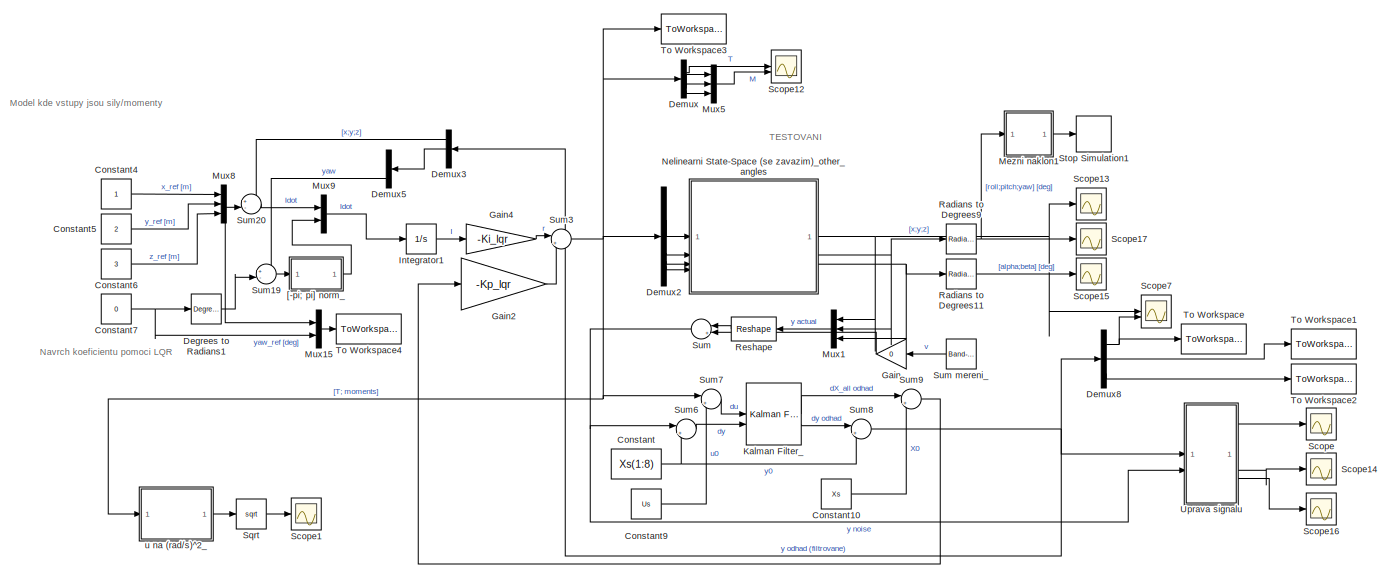
[diagram: root canvas - part 1/2, full width, top band]
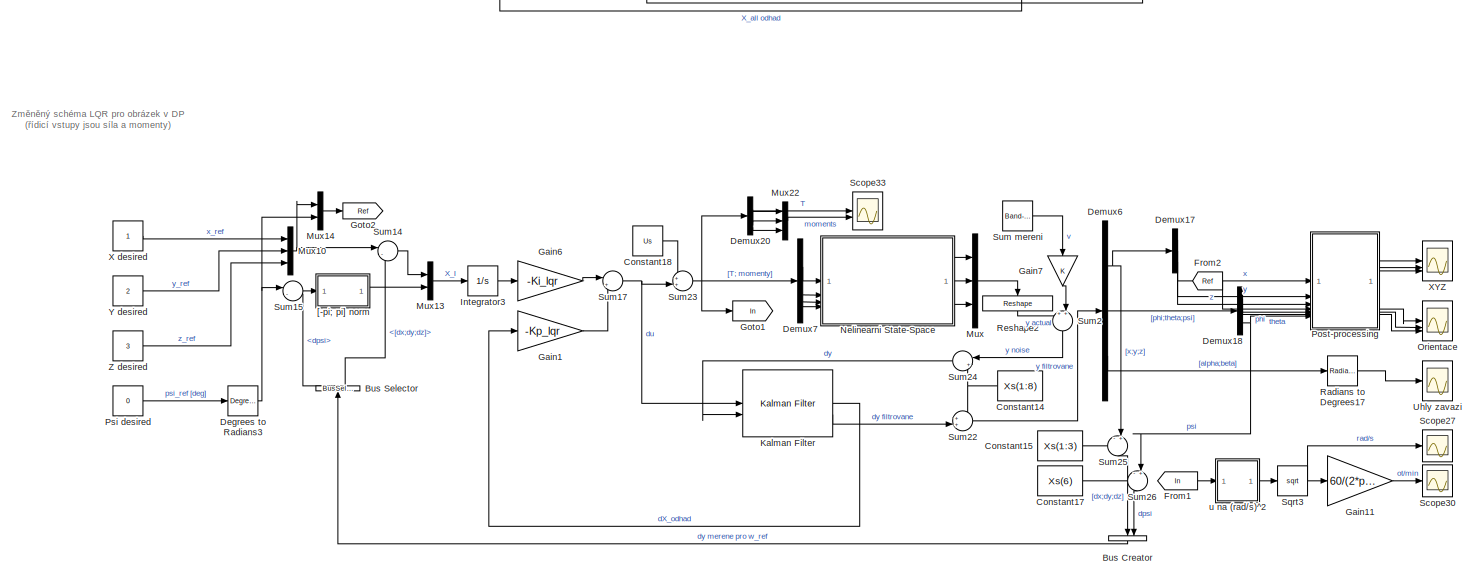
[diagram: root canvas - part 2/2, full width, bottom band]
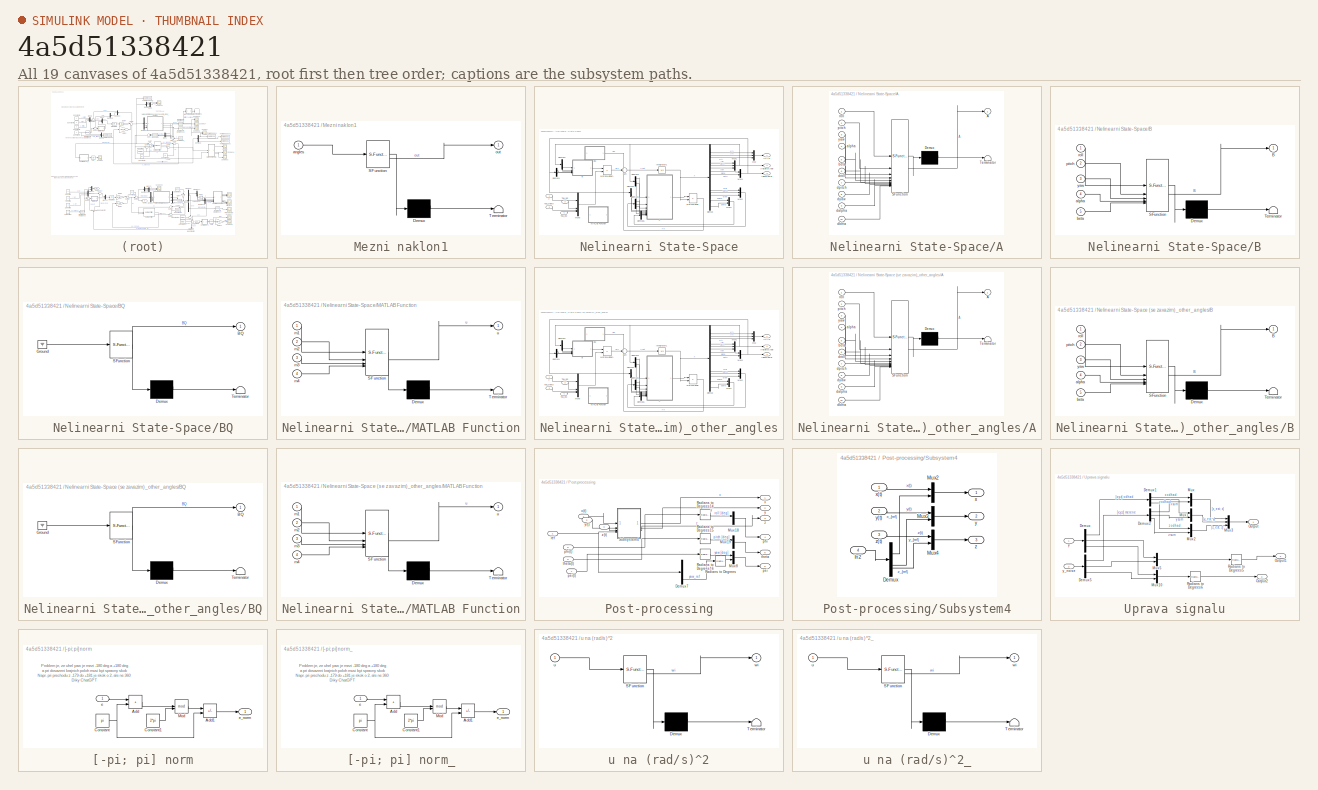
[diagram: thumbnail index - all 19 canvases of the model, root first then tree order]
MODEL slx_4a5d51338421
KIND model
CONFIG AbsTol = auto
CONFIG EnableMultiTasking = off
CONFIG FixedStep = Ts
CONFIG MaxStep = auto
CONFIG MinStep = auto
CONFIG RelTol = 1e-3
CONFIG SampleTimeConstraint = Unconstrained
CONFIG SolverName = ode4
CONFIG StartTime = 0.0
CONFIG StopTime = 16
BLOCK [BusCreator] Bus Creator
  DisplayOption = bar
  InheritFromInputs = on
  Inputs = 2
  NameLocation = left
BLOCK [BusSelector] Bus Selector
  NameLocation = right
  OutputSignals = dpsi,[dx;dy;dz]
BLOCK [Constant] Constant
  Commented = on
  Value = Xs(1:8)
BLOCK [Constant] Constant10
  Commented = on
  Value = Xs
BLOCK [Constant] Constant14
  Value = Xs(1:8)
BLOCK [Constant] Constant15
  Value = Xs(1:3)
BLOCK [Constant] Constant17
  Value = Xs(6)
BLOCK [Constant] Constant18
  Value = Us
BLOCK [Constant] Constant4
  Commented = on
BLOCK [Constant] Constant5
  Commented = on
  Value = 2
BLOCK [Constant] Constant6
  Commented = on
  Value = 3
BLOCK [Constant] Constant7
  Commented = on
  Value = 0
BLOCK [Constant] Constant9
  Commented = on
  Value = Us
BLOCK [Reference] Degrees to Radians1  REF=simulink_extras/Transformations/Degrees to
Radians
  Commented = on
  SourceBlock = simulink_extras/Transformations/Degrees to\nRadians
  SourceType = DegreesToRadians
BLOCK [Reference] Degrees to Radians3  REF=simulink_extras/Transformations/Degrees to
Radians
  SourceBlock = simulink_extras/Transformations/Degrees to\nRadians
  SourceType = DegreesToRadians
BLOCK [Demux] Demux
  Commented = on
BLOCK [Demux] Demux17
  Outputs = 3
BLOCK [Demux] Demux18
  Outputs = 3
BLOCK [Demux] Demux2
  Commented = on
BLOCK [Demux] Demux20
BLOCK [Demux] Demux3
  Commented = on
  Outputs = 3
BLOCK [Demux] Demux5
  Commented = on
  Outputs = 3
BLOCK [Demux] Demux6
  Outputs = 3
BLOCK [Demux] Demux7
BLOCK [Demux] Demux8
  Commented = on
  Outputs = 3
BLOCK [From] From1
  GotoTag = In
BLOCK [From] From2
  GotoTag = Ref
BLOCK [Gain] Gain
  Commented = on
  Gain = 0
BLOCK [Gain] Gain1
  Gain = -Kp_lqr
  Multiplication = Matrix(K*u)
BLOCK [Gain] Gain11
  Gain = 60/(2*pi)
BLOCK [Gain] Gain2
  Commented = on
  Gain = -Kp_lqr
  Multiplication = Matrix(K*u)
BLOCK [Gain] Gain4
  Commented = on
  Gain = -Ki_lqr
  Multiplication = Matrix(K*u)
BLOCK [Gain] Gain6
  Gain = -Ki_lqr
  Multiplication = Matrix(K*u)
BLOCK [Gain] Gain7
  NameLocation = left
BLOCK [Goto] Goto1
  GotoTag = In
BLOCK [Goto] Goto2
  GotoTag = Ref
BLOCK [Integrator] Integrator1
  Commented = on
  InitialCondition = init_int_ref_lqr
BLOCK [Integrator] Integrator3
  InitialCondition = init_int_dref_lqr
BLOCK [Reference] Kalman Filter   REF=ctrlSharedLib/Kalman Filter
  LibrarySourceBlock = cstblocks/State Estimation/Kalman Filter
  SourceBlock = ctrlSharedLib/Kalman Filter
  SourceType = ctrlKalmanFilter
BLOCK [Reference] Kalman Filter_  REF=ctrlSharedLib/Kalman Filter
  Commented = on
  LibrarySourceBlock = cstblocks/State Estimation/Kalman Filter
  SourceBlock = ctrlSharedLib/Kalman Filter
  SourceType = ctrlKalmanFilter
BLOCK [SubSystem] Mezni naklon1
  Commented = on
  ErrorFcn = Stateflow.Translate.translate
  PermitHierarchicalResolution = ExplicitOnly
  SFBlockType = MATLAB Function
  TreatAsAtomicUnit = on
BLOCK [Demux] Mezni naklon1/ Demux 
  Outputs = 1
BLOCK [S-Function] Mezni naklon1/ SFunction 
  EnableBusSupport = on
  FunctionName = sf_sfun
  PortCounts = [1 2]
  SFcnIsStateOwnerBlock = off
  SFunctionDeploymentMode = off
  Tag = Stateflow S-Function 2
BLOCK [Terminator] Mezni naklon1/ Terminator 
BLOCK [Inport] Mezni naklon1/angles
BLOCK [Outport] Mezni naklon1/out
BLOCK [Mux] Mux
  DisplayOption = bar
  Inputs = 3
BLOCK [Mux] Mux1
  Commented = on
  DisplayOption = bar
  Inputs = 3
BLOCK [Mux] Mux10
  DisplayOption = bar
  Inputs = 3
BLOCK [Mux] Mux13
  DisplayOption = bar
  Inputs = 2
BLOCK [Mux] Mux14
  DisplayOption = bar
  Inputs = 2
BLOCK [Mux] Mux15
  Commented = on
  DisplayOption = bar
  Inputs = 2
BLOCK [Mux] Mux22
  DisplayOption = bar
  Inputs = 3
BLOCK [Mux] Mux5
  Commented = on
  DisplayOption = bar
  Inputs = 3
BLOCK [Mux] Mux8
  Commented = on
  DisplayOption = bar
  Inputs = 3
BLOCK [Mux] Mux9
  Commented = on
  DisplayOption = bar
  Inputs = 2
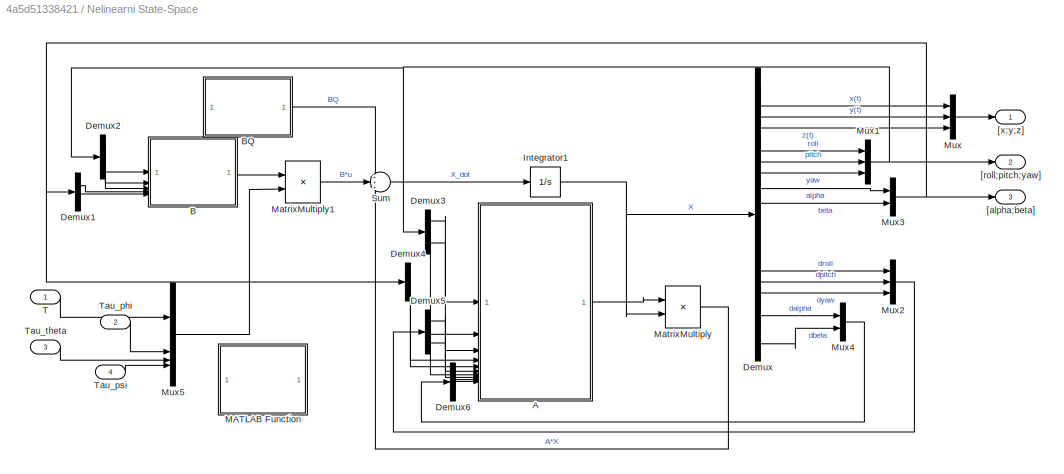
BLOCK [SubSystem] Nelinearni State-Space
BLOCK [SubSystem] Nelinearni State-Space (se zavazim)_other_angles
  Commented = on
BLOCK [SubSystem] Nelinearni State-Space (se zavazim)_other_angles/A
  ErrorFcn = Stateflow.Translate.translate
  PermitHierarchicalResolution = ExplicitOnly
  SFBlockType = MATLAB Function
  TreatAsAtomicUnit = on
BLOCK [Demux] Nelinearni State-Space (se zavazim)_other_angles/A/ Demux 
  Outputs = 1
BLOCK [S-Function] Nelinearni State-Space (se zavazim)_other_angles/A/ SFunction 
  EnableBusSupport = on
  FunctionName = sf_sfun
  Parameters = Ip,Ixx,Iyy,Izz,M,d,m
  PortCounts = [10 2]
  SFcnIsStateOwnerBlock = off
  SFunctionDeploymentMode = off
  Tag = Stateflow S-Function 21
BLOCK [Terminator] Nelinearni State-Space (se zavazim)_other_angles/A/ Terminator 
BLOCK [Outport] Nelinearni State-Space (se zavazim)_other_angles/A/A
BLOCK [Inport] Nelinearni State-Space (se zavazim)_other_angles/A/alpha
  Port = 4
BLOCK [Inport] Nelinearni State-Space (se zavazim)_other_angles/A/beta
  Port = 5
BLOCK [Inport] Nelinearni State-Space (se zavazim)_other_angles/A/dalpha
  Port = 9
BLOCK [Inport] Nelinearni State-Space (se zavazim)_other_angles/A/dbeta
  Port = 10
BLOCK [Inport] Nelinearni State-Space (se zavazim)_other_angles/A/dpitch
  Port = 7
BLOCK [Inport] Nelinearni State-Space (se zavazim)_other_angles/A/droll
  Port = 6
BLOCK [Inport] Nelinearni State-Space (se zavazim)_other_angles/A/dyaw
  Port = 8
BLOCK [Inport] Nelinearni State-Space (se zavazim)_other_angles/A/pitch
  Port = 2
BLOCK [Inport] Nelinearni State-Space (se zavazim)_other_angles/A/roll
BLOCK [Inport] Nelinearni State-Space (se zavazim)_other_angles/A/yaw
  Port = 3
BLOCK [SubSystem] Nelinearni State-Space (se zavazim)_other_angles/B
  ErrorFcn = Stateflow.Translate.translate
  PermitHierarchicalResolution = ExplicitOnly
  SFBlockType = MATLAB Function
  TreatAsAtomicUnit = on
BLOCK [Demux] Nelinearni State-Space (se zavazim)_other_angles/B/ Demux 
  Outputs = 1
BLOCK [S-Function] Nelinearni State-Space (se zavazim)_other_angles/B/ SFunction 
  EnableBusSupport = on
  FunctionName = sf_sfun
  Parameters = Ip,Ixx,Iyy,Izz,M,d,m
  PortCounts = [5 2]
  SFcnIsStateOwnerBlock = off
  SFunctionDeploymentMode = off
  Tag = Stateflow S-Function 22
BLOCK [Terminator] Nelinearni State-Space (se zavazim)_other_angles/B/ Terminator 
BLOCK [Outport] Nelinearni State-Space (se zavazim)_other_angles/B/B
BLOCK [Inport] Nelinearni State-Space (se zavazim)_other_angles/B/alpha
  Port = 4
BLOCK [Inport] Nelinearni State-Space (se zavazim)_other_angles/B/beta
  Port = 5
BLOCK [Inport] Nelinearni State-Space (se zavazim)_other_angles/B/pitch
  Port = 2
BLOCK [Inport] Nelinearni State-Space (se zavazim)_other_angles/B/roll
BLOCK [Inport] Nelinearni State-Space (se zavazim)_other_angles/B/yaw
  Port = 3
BLOCK [SubSystem] Nelinearni State-Space (se zavazim)_other_angles/BQ
  ErrorFcn = Stateflow.Translate.translate
  PermitHierarchicalResolution = ExplicitOnly
  SFBlockType = MATLAB Function
  TreatAsAtomicUnit = on
BLOCK [Demux] Nelinearni State-Space (se zavazim)_other_angles/BQ/ Demux 
  Outputs = 1
BLOCK [Ground] Nelinearni State-Space (se zavazim)_other_angles/BQ/ Ground 
BLOCK [S-Function] Nelinearni State-Space (se zavazim)_other_angles/BQ/ SFunction 
  EnableBusSupport = on
  FunctionName = sf_sfun
  Parameters = g
  PortCounts = [1 2]
  SFcnIsStateOwnerBlock = off
  SFunctionDeploymentMode = off
  Tag = Stateflow S-Function 23
BLOCK [Terminator] Nelinearni State-Space (se zavazim)_other_angles/BQ/ Terminator 
BLOCK [Outport] Nelinearni State-Space (se zavazim)_other_angles/BQ/BQ
BLOCK [Demux] Nelinearni State-Space (se zavazim)_other_angles/Demux
  Outputs = 16
BLOCK [Demux] Nelinearni State-Space (se zavazim)_other_angles/Demux1
  Outputs = 2
BLOCK [Demux] Nelinearni State-Space (se zavazim)_other_angles/Demux2
  Outputs = 3
BLOCK [Demux] Nelinearni State-Space (se zavazim)_other_angles/Demux3
  Outputs = 3
BLOCK [Demux] Nelinearni State-Space (se zavazim)_other_angles/Demux4
  Outputs = 2
BLOCK [Demux] Nelinearni State-Space (se zavazim)_other_angles/Demux5
  Outputs = 3
BLOCK [Demux] Nelinearni State-Space (se zavazim)_other_angles/Demux6
  Outputs = 2
BLOCK [Integrator] Nelinearni State-Space (se zavazim)_other_angles/Integrator1
  InitialCondition = Xinit_ss
BLOCK [SubSystem] Nelinearni State-Space (se zavazim)_other_angles/MATLAB Function
  Commented = on
  ErrorFcn = Stateflow.Translate.translate
  PermitHierarchicalResolution = ExplicitOnly
  SFBlockType = MATLAB Function
  TreatAsAtomicUnit = on
BLOCK [Demux] Nelinearni State-Space (se zavazim)_other_angles/MATLAB Function/ Demux 
  Outputs = 1
BLOCK [S-Function] Nelinearni State-Space (se zavazim)_other_angles/MATLAB Function/ SFunction 
  EnableBusSupport = on
  FunctionName = sf_sfun
  Parameters = L,b_moment,k_thrust
  PortCounts = [4 2]
  SFcnIsStateOwnerBlock = off
  SFunctionDeploymentMode = off
  Tag = Stateflow S-Function 24
BLOCK [Terminator] Nelinearni State-Space (se zavazim)_other_angles/MATLAB Function/ Terminator 
BLOCK [Inport] Nelinearni State-Space (se zavazim)_other_angles/MATLAB Function/m1
BLOCK [Inport] Nelinearni State-Space (se zavazim)_other_angles/MATLAB Function/m2
  Port = 2
BLOCK [Inport] Nelinearni State-Space (se zavazim)_other_angles/MATLAB Function/m3
  Port = 3
BLOCK [Inport] Nelinearni State-Space (se zavazim)_other_angles/MATLAB Function/m4
  Port = 4
BLOCK [Outport] Nelinearni State-Space (se zavazim)_other_angles/MATLAB Function/u
BLOCK [Product] Nelinearni State-Space (se zavazim)_other_angles/MatrixMultiply
  Multiplication = Matrix(*)
BLOCK [Product] Nelinearni State-Space (se zavazim)_other_angles/MatrixMultiply1
  Multiplication = Matrix(*)
BLOCK [Mux] Nelinearni State-Space (se zavazim)_other_angles/Mux
  DisplayOption = bar
  Inputs = 3
BLOCK [Mux] Nelinearni State-Space (se zavazim)_other_angles/Mux1
  DisplayOption = bar
  Inputs = 3
BLOCK [Mux] Nelinearni State-Space (se zavazim)_other_angles/Mux2
  DisplayOption = bar
  Inputs = 3
BLOCK [Mux] Nelinearni State-Space (se zavazim)_other_angles/Mux3
  DisplayOption = bar
  Inputs = 2
BLOCK [Mux] Nelinearni State-Space (se zavazim)_other_angles/Mux4
  DisplayOption = bar
  Inputs = 2
BLOCK [Mux] Nelinearni State-Space (se zavazim)_other_angles/Mux5
  DisplayOption = bar
BLOCK [Sum] Nelinearni State-Space (se zavazim)_other_angles/Sum
  Inputs = +++
BLOCK [Inport] Nelinearni State-Space (se zavazim)_other_angles/T
BLOCK [Inport] Nelinearni State-Space (se zavazim)_other_angles/Tau_phi
  Port = 2
BLOCK [Inport] Nelinearni State-Space (se zavazim)_other_angles/Tau_psi
  Port = 4
BLOCK [Inport] Nelinearni State-Space (se zavazim)_other_angles/Tau_theta
  Port = 3
BLOCK [Outport] Nelinearni State-Space (se zavazim)_other_angles/[alpha;beta]
  Port = 3
BLOCK [Outport] Nelinearni State-Space (se zavazim)_other_angles/[roll;pitch;yaw]
  Port = 2
BLOCK [Outport] Nelinearni State-Space (se zavazim)_other_angles/[x;y;z]
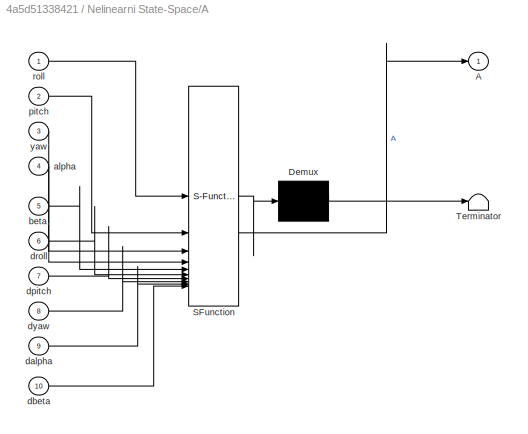
BLOCK [SubSystem] Nelinearni State-Space/A
  ErrorFcn = Stateflow.Translate.translate
  PermitHierarchicalResolution = ExplicitOnly
  SFBlockType = MATLAB Function
  TreatAsAtomicUnit = on
BLOCK [Demux] Nelinearni State-Space/A/ Demux 
  Outputs = 1
BLOCK [S-Function] Nelinearni State-Space/A/ SFunction 
  EnableBusSupport = on
  FunctionName = sf_sfun
  Parameters = Ip,Ixx,Iyy,Izz,M,d,m
  PortCounts = [10 2]
  SFcnIsStateOwnerBlock = off
  SFunctionDeploymentMode = off
  Tag = Stateflow S-Function 3
BLOCK [Terminator] Nelinearni State-Space/A/ Terminator 
BLOCK [Outport] Nelinearni State-Space/A/A
BLOCK [Inport] Nelinearni State-Space/A/alpha
  Port = 4
BLOCK [Inport] Nelinearni State-Space/A/beta
  Port = 5
BLOCK [Inport] Nelinearni State-Space/A/dalpha
  Port = 9
BLOCK [Inport] Nelinearni State-Space/A/dbeta
  Port = 10
BLOCK [Inport] Nelinearni State-Space/A/dpitch
  Port = 7
BLOCK [Inport] Nelinearni State-Space/A/droll
  Port = 6
BLOCK [Inport] Nelinearni State-Space/A/dyaw
  Port = 8
BLOCK [Inport] Nelinearni State-Space/A/pitch
  Port = 2
BLOCK [Inport] Nelinearni State-Space/A/roll
BLOCK [Inport] Nelinearni State-Space/A/yaw
  Port = 3
BLOCK [SubSystem] Nelinearni State-Space/B
  ErrorFcn = Stateflow.Translate.translate
  PermitHierarchicalResolution = ExplicitOnly
  SFBlockType = MATLAB Function
  TreatAsAtomicUnit = on
BLOCK [Demux] Nelinearni State-Space/B/ Demux 
  Outputs = 1
BLOCK [S-Function] Nelinearni State-Space/B/ SFunction 
  EnableBusSupport = on
  FunctionName = sf_sfun
  Parameters = Ip,Ixx,Iyy,Izz,M,d,m
  PortCounts = [5 2]
  SFcnIsStateOwnerBlock = off
  SFunctionDeploymentMode = off
  Tag = Stateflow S-Function 7
BLOCK [Terminator] Nelinearni State-Space/B/ Terminator 
BLOCK [Outport] Nelinearni State-Space/B/B
BLOCK [Inport] Nelinearni State-Space/B/alpha
  Port = 4
BLOCK [Inport] Nelinearni State-Space/B/beta
  Port = 5
BLOCK [Inport] Nelinearni State-Space/B/pitch
  Port = 2
BLOCK [Inport] Nelinearni State-Space/B/roll
BLOCK [Inport] Nelinearni State-Space/B/yaw
  Port = 3
BLOCK [SubSystem] Nelinearni State-Space/BQ
  ErrorFcn = Stateflow.Translate.translate
  PermitHierarchicalResolution = ExplicitOnly
  SFBlockType = MATLAB Function
  TreatAsAtomicUnit = on
BLOCK [Demux] Nelinearni State-Space/BQ/ Demux 
  Outputs = 1
BLOCK [Ground] Nelinearni State-Space/BQ/ Ground 
BLOCK [S-Function] Nelinearni State-Space/BQ/ SFunction 
  EnableBusSupport = on
  FunctionName = sf_sfun
  Parameters = g
  PortCounts = [1 2]
  SFcnIsStateOwnerBlock = off
  SFunctionDeploymentMode = off
  Tag = Stateflow S-Function 8
BLOCK [Terminator] Nelinearni State-Space/BQ/ Terminator 
BLOCK [Outport] Nelinearni State-Space/BQ/BQ
BLOCK [Demux] Nelinearni State-Space/Demux
  Outputs = 16
BLOCK [Demux] Nelinearni State-Space/Demux1
  Outputs = 2
BLOCK [Demux] Nelinearni State-Space/Demux2
  Outputs = 3
BLOCK [Demux] Nelinearni State-Space/Demux3
  Outputs = 3
BLOCK [Demux] Nelinearni State-Space/Demux4
  Outputs = 2
BLOCK [Demux] Nelinearni State-Space/Demux5
  Outputs = 3
BLOCK [Demux] Nelinearni State-Space/Demux6
  Outputs = 2
BLOCK [Integrator] Nelinearni State-Space/Integrator1
  InitialCondition = Xinit_ss
BLOCK [SubSystem] Nelinearni State-Space/MATLAB Function
  Commented = on
  ErrorFcn = Stateflow.Translate.translate
  PermitHierarchicalResolution = ExplicitOnly
  SFBlockType = MATLAB Function
  TreatAsAtomicUnit = on
BLOCK [Demux] Nelinearni State-Space/MATLAB Function/ Demux 
  Outputs = 1
BLOCK [S-Function] Nelinearni State-Space/MATLAB Function/ SFunction 
  EnableBusSupport = on
  FunctionName = sf_sfun
  Parameters = L,b_moment,k_thrust
  PortCounts = [4 2]
  SFcnIsStateOwnerBlock = off
  SFunctionDeploymentMode = off
  Tag = Stateflow S-Function 4
BLOCK [Terminator] Nelinearni State-Space/MATLAB Function/ Terminator 
BLOCK [Inport] Nelinearni State-Space/MATLAB Function/m1
BLOCK [Inport] Nelinearni State-Space/MATLAB Function/m2
  Port = 2
BLOCK [Inport] Nelinearni State-Space/MATLAB Function/m3
  Port = 3
BLOCK [Inport] Nelinearni State-Space/MATLAB Function/m4
  Port = 4
BLOCK [Outport] Nelinearni State-Space/MATLAB Function/u
BLOCK [Product] Nelinearni State-Space/MatrixMultiply
  Multiplication = Matrix(*)
BLOCK [Product] Nelinearni State-Space/MatrixMultiply1
  Multiplication = Matrix(*)
BLOCK [Mux] Nelinearni State-Space/Mux
  DisplayOption = bar
  Inputs = 3
BLOCK [Mux] Nelinearni State-Space/Mux1
  DisplayOption = bar
  Inputs = 3
BLOCK [Mux] Nelinearni State-Space/Mux2
  DisplayOption = bar
  Inputs = 3
BLOCK [Mux] Nelinearni State-Space/Mux3
  DisplayOption = bar
  Inputs = 2
BLOCK [Mux] Nelinearni State-Space/Mux4
  DisplayOption = bar
  Inputs = 2
BLOCK [Mux] Nelinearni State-Space/Mux5
  DisplayOption = bar
BLOCK [Sum] Nelinearni State-Space/Sum
  Inputs = +++
BLOCK [Inport] Nelinearni State-Space/T
BLOCK [Inport] Nelinearni State-Space/Tau_phi
  Port = 2
BLOCK [Inport] Nelinearni State-Space/Tau_psi
  Port = 4
BLOCK [Inport] Nelinearni State-Space/Tau_theta
  Port = 3
BLOCK [Outport] Nelinearni State-Space/[alpha;beta]
  Port = 3
BLOCK [Outport] Nelinearni State-Space/[roll;pitch;yaw]
  Port = 2
BLOCK [Outport] Nelinearni State-Space/[x;y;z]
BLOCK [Scope] Orientace
  Floating = off
  NumInputPorts = 3
  ScopeSpecificationString = Simulink.scopes.TimeScopeBlockCfg('CurrentConfiguration', extmgr.ConfigurationSet(extmgr.Configuration('Core','General UI',true),extmgr.Configuration('Core','Source UI',true),extmgr.Configuration('Sources','WiredSimulink',true,'DataLoggingVariableName','ScopeData1'),extmgr.Configuration('Visuals','Time Domain',true,'PlotType','Stairs','SerializedDisplays',{struct('MinYLimReal','-8.42306','MaxYLimR...<+1922ch>
BLOCK [SubSystem] Post-processing
BLOCK [Demux] Post-processing/Demux7
BLOCK [Mux] Post-processing/Mux18
  DisplayOption = bar
  Inputs = 2
BLOCK [Mux] Post-processing/Mux19
  DisplayOption = bar
  Inputs = 2
BLOCK [Mux] Post-processing/Mux8
  DisplayOption = bar
  Inputs = 2
BLOCK [Reference] Post-processing/Radians to Degrees  REF=simulink_extras/Transformations/Radians
to Degrees
  SourceBlock = simulink_extras/Transformations/Radians\nto Degrees
  SourceType = RadiansToDegrees
BLOCK [Reference] Post-processing/Radians to Degrees14  REF=simulink_extras/Transformations/Radians
to Degrees
  SourceBlock = simulink_extras/Transformations/Radians\nto Degrees
  SourceType = RadiansToDegrees
BLOCK [Reference] Post-processing/Radians to Degrees15  REF=simulink_extras/Transformations/Radians
to Degrees
  SourceBlock = simulink_extras/Transformations/Radians\nto Degrees
  SourceType = RadiansToDegrees
BLOCK [Reference] Post-processing/Radians to Degrees16  REF=simulink_extras/Transformations/Radians
to Degrees
  SourceBlock = simulink_extras/Transformations/Radians\nto Degrees
  SourceType = RadiansToDegrees
BLOCK [SubSystem] Post-processing/Subsystem4
BLOCK [Demux] Post-processing/Subsystem4/Demux
BLOCK [Inport] Post-processing/Subsystem4/In2
  Port = 4
BLOCK [Mux] Post-processing/Subsystem4/Mux2
  DisplayOption = bar
  Inputs = 2
BLOCK [Mux] Post-processing/Subsystem4/Mux3
  DisplayOption = bar
  Inputs = 2
BLOCK [Mux] Post-processing/Subsystem4/Mux4
  DisplayOption = bar
  Inputs = 2
BLOCK [Outport] Post-processing/Subsystem4/x
BLOCK [Inport] Post-processing/Subsystem4/x(t)
BLOCK [Outport] Post-processing/Subsystem4/y
  Port = 2
BLOCK [Inport] Post-processing/Subsystem4/y(t)
  Port = 2
BLOCK [Outport] Post-processing/Subsystem4/z
  Port = 3
BLOCK [Inport] Post-processing/Subsystem4/z(t)
  Port = 3
BLOCK [Outport] Post-processing/phi
  Port = 4
BLOCK [Inport] Post-processing/phi(t)
  Port = 5
BLOCK [Outport] Post-processing/psi
  Port = 6
BLOCK [Inport] Post-processing/psi(t)
  Port = 7
BLOCK [Inport] Post-processing/ref
  Port = 4
BLOCK [Outport] Post-processing/theta
  Port = 5
BLOCK [Inport] Post-processing/theta(t)
  Port = 6
BLOCK [Outport] Post-processing/x
BLOCK [Inport] Post-processing/x(t)
BLOCK [Outport] Post-processing/y
  Port = 2
BLOCK [Inport] Post-processing/y(t)
  Port = 2
BLOCK [Outport] Post-processing/z
  Port = 3
BLOCK [Inport] Post-processing/z(t)
  Port = 3
BLOCK [Constant] Psi desired
  Value = 0
BLOCK [Reference] Radians to Degrees11  REF=simulink_extras/Transformations/Radians
to Degrees
  Commented = on
  SourceBlock = simulink_extras/Transformations/Radians\nto Degrees
  SourceType = RadiansToDegrees
BLOCK [Reference] Radians to Degrees17  REF=simulink_extras/Transformations/Radians
to Degrees
  SourceBlock = simulink_extras/Transformations/Radians\nto Degrees
  SourceType = RadiansToDegrees
BLOCK [Reference] Radians to Degrees9  REF=simulink_extras/Transformations/Radians
to Degrees
  Commented = on
  SourceBlock = simulink_extras/Transformations/Radians\nto Degrees
  SourceType = RadiansToDegrees
BLOCK [Reshape] Reshape
  Commented = on
  OutputDimensionality = Customize
  OutputDimensions = [8,1]
BLOCK [Reshape] Reshape2
  NameLocation = left
  OutputDimensionality = Customize
  OutputDimensions = [8,1]
BLOCK [Scope] Scope
  Commented = on
  Floating = off
  NumInputPorts = 1
  ScopeSpecificationString = Simulink.scopes.TimeScopeBlockCfg('CurrentConfiguration', extmgr.ConfigurationSet(extmgr.Configuration('Core','General UI',true),extmgr.Configuration('Core','Source UI',true),extmgr.Configuration('Sources','WiredSimulink',true,'DataLoggingVariableName','ScopeData2'),extmgr.Configuration('Visuals','Time Domain',true,'SerializedDisplays',{struct('MinYLimReal','-0.66796','MaxYLimReal','3.89014','YLab...<+1779ch>
BLOCK [Scope] Scope1
  Commented = on
  Floating = off
  NumInputPorts = 1
  ScopeSpecificationString = Simulink.scopes.TimeScopeBlockCfg('CurrentConfiguration', extmgr.ConfigurationSet(extmgr.Configuration('Core','General UI',true),extmgr.Configuration('Core','Source UI',true),extmgr.Configuration('Sources','WiredSimulink',true,'DataLoggingVariableName','ScopeData1'),extmgr.Configuration('Visuals','Time Domain',true,'SerializedDisplays',{struct('MinYLimReal','-231.55527','MaxYLimReal','2832.53005',...<+1661ch>
BLOCK [Scope] Scope12
  Commented = on
  Floating = off
  NumInputPorts = 2
  ScopeSpecificationString = Simulink.scopes.TimeScopeBlockCfg('CurrentConfiguration', extmgr.ConfigurationSet(extmgr.Configuration('Core','General UI',true),extmgr.Configuration('Core','Source UI',true),extmgr.Configuration('Sources','WiredSimulink',true,'DataLoggingVariableName','ScopeData1'),extmgr.Configuration('Visuals','Time Domain',true,'SerializedDisplays',{struct('MinYLimReal','27.725','MaxYLimReal','32.2078','YLabel...<+2286ch>
BLOCK [Scope] Scope13
  Commented = on
  Floating = off
  NumInputPorts = 1
  ScopeSpecificationString = Simulink.scopes.TimeScopeBlockCfg('CurrentConfiguration', extmgr.ConfigurationSet(extmgr.Configuration('Core','General UI',true,'FigureColor',[1 1 1]),extmgr.Configuration('Core','Source UI',true),extmgr.Configuration('Sources','WiredSimulink',true,'DataLoggingVariableName','ScopeData5'),extmgr.Configuration('Visuals','Time Domain',true,'SerializedDisplays',{struct('MinYLimReal','-0.39823','MaxYLi...<+1875ch>
BLOCK [Scope] Scope14
  Commented = on
  Floating = off
  NumInputPorts = 1
  ScopeSpecificationString = Simulink.scopes.TimeScopeBlockCfg('CurrentConfiguration', extmgr.ConfigurationSet(extmgr.Configuration('Core','General UI',true),extmgr.Configuration('Core','Source UI',true),extmgr.Configuration('Sources','WiredSimulink',true,'DataLoggingVariableName','ScopeData2'),extmgr.Configuration('Visuals','Time Domain',true,'SerializedDisplays',{struct('MinYLimReal','-10.22922','MaxYLimReal','10.80027','YL...<+1790ch>
BLOCK [Scope] Scope15
  Commented = on
  Floating = off
  NumInputPorts = 1
  ScopeSpecificationString = Simulink.scopes.TimeScopeBlockCfg('CurrentConfiguration', extmgr.ConfigurationSet(extmgr.Configuration('Core','General UI',true,'FigureColor',[1 1 1]),extmgr.Configuration('Core','Source UI',true),extmgr.Configuration('Sources','WiredSimulink',true,'DataLoggingVariableName','ScopeData2'),extmgr.Configuration('Visuals','Time Domain',true,'SerializedDisplays',{struct('MinYLimReal','-8.32434','MaxYLi...<+1889ch>
BLOCK [Scope] Scope16
  Commented = on
  Floating = off
  NumInputPorts = 1
  ScopeSpecificationString = Simulink.scopes.TimeScopeBlockCfg('CurrentConfiguration', extmgr.ConfigurationSet(extmgr.Configuration('Core','General UI',true),extmgr.Configuration('Core','Source UI',true),extmgr.Configuration('Sources','WiredSimulink',true,'DataLoggingVariableName','ScopeData3'),extmgr.Configuration('Visuals','Time Domain',true,'SerializedDisplays',{struct('MinYLimReal','-11.12318','MaxYLimReal','10.61632','YL...<+1724ch>
BLOCK [Scope] Scope17
  Commented = on
  Floating = off
  NumInputPorts = 1
  ScopeSpecificationString = Simulink.scopes.TimeScopeBlockCfg('CurrentConfiguration', extmgr.ConfigurationSet(extmgr.Configuration('Core','General UI',true,'FigureColor',[1 1 1]),extmgr.Configuration('Core','Source UI',true),extmgr.Configuration('Sources','WiredSimulink',true,'DataLoggingVariableName','ScopeData1'),extmgr.Configuration('Visuals','Time Domain',true,'SerializedDisplays',{struct('MinYLimReal','-6.4702','MaxYLim...<+1922ch>
BLOCK [Scope] Scope27
  Floating = off
  NumInputPorts = 1
  ScopeSpecificationString = Simulink.scopes.TimeScopeBlockCfg('CurrentConfiguration', extmgr.ConfigurationSet(extmgr.Configuration('Core','General UI',true),extmgr.Configuration('Core','Source UI',true),extmgr.Configuration('Sources','WiredSimulink',true,'DataLoggingVariableName','ScopeData2'),extmgr.Configuration('Visuals','Time Domain',true,'SerializedDisplays',{struct('MinYLimReal','823.8671','MaxYLimReal','993.94849','YL...<+1568ch>
BLOCK [Scope] Scope30
  Floating = off
  NumInputPorts = 1
  ScopeSpecificationString = Simulink.scopes.TimeScopeBlockCfg('CurrentConfiguration', extmgr.ConfigurationSet(extmgr.Configuration('Core','General UI',true),extmgr.Configuration('Core','Source UI',true),extmgr.Configuration('Sources','WiredSimulink',true,'DataLoggingVariableName','ScopeData3'),extmgr.Configuration('Visuals','Time Domain',true,'SerializedDisplays',{struct('MinYLimReal','7867.35124','MaxYLimReal','9491.50894',...<+1584ch>
BLOCK [Scope] Scope33
  Floating = off
  NumInputPorts = 2
  ScopeSpecificationString = Simulink.scopes.TimeScopeBlockCfg('CurrentConfiguration', extmgr.ConfigurationSet(extmgr.Configuration('Core','General UI',true),extmgr.Configuration('Core','Source UI',true),extmgr.Configuration('Sources','WiredSimulink',true,'DataLoggingVariableName','ScopeData4'),extmgr.Configuration('Visuals','Time Domain',true,'SerializedDisplays',{struct('MinYLimReal','24.64872','MaxYLimReal','32.56409','YLa...<+2285ch>
BLOCK [Scope] Scope7
  Commented = on
  Floating = off
  NumInputPorts = 2
  ScopeSpecificationString = Simulink.scopes.TimeScopeBlockCfg('CurrentConfiguration', extmgr.ConfigurationSet(extmgr.Configuration('Core','General UI',true),extmgr.Configuration('Core','Source UI',true),extmgr.Configuration('Sources','WiredSimulink',true,'DataLoggingVariableName','ScopeData3'),extmgr.Configuration('Visuals','Time Domain',true,'SerializedDisplays',{struct('MinYLimReal','-0.42557','MaxYLimReal','3.53499','YLab...<+1591ch>
BLOCK [Sqrt] Sqrt
  Commented = on
BLOCK [Sqrt] Sqrt3
BLOCK [Stop] Stop Simulation1
  Commented = on
BLOCK [Sum] Sum
  Commented = on
  Inputs = |++
BLOCK [Reference] Sum mereni  REF=simulink/Sources/Band-Limited
White Noise
  SourceBlock = simulink/Sources/Band-Limited\nWhite Noise
  SourceType = Band-Limited White Noise.
BLOCK [Reference] Sum mereni_  REF=simulink/Sources/Band-Limited
White Noise
  Commented = on
  SourceBlock = simulink/Sources/Band-Limited\nWhite Noise
  SourceType = Band-Limited White Noise.
BLOCK [Sum] Sum14
  Inputs = |-+
BLOCK [Sum] Sum15
  Inputs = |-+
BLOCK [Sum] Sum17
  Inputs = |++
BLOCK [Sum] Sum19
  Commented = on
  Inputs = +-|
BLOCK [Sum] Sum2
  Inputs = ++|
  NameLocation = left
BLOCK [Sum] Sum20
  Commented = on
  Inputs = +-|
BLOCK [Sum] Sum22
  Inputs = ++|
BLOCK [Sum] Sum23
  Inputs = ++|
BLOCK [Sum] Sum24
  Inputs = |+-
BLOCK [Sum] Sum25
  Inputs = -+|
  NameLocation = left
BLOCK [Sum] Sum26
  Inputs = -+|
  NameLocation = left
BLOCK [Sum] Sum3
  Commented = on
  Inputs = |++
BLOCK [Sum] Sum6
  Commented = on
  Inputs = |+-
BLOCK [Sum] Sum7
  Commented = on
  Inputs = |+-
BLOCK [Sum] Sum8
  Commented = on
  Inputs = |++
BLOCK [Sum] Sum9
  Commented = on
  Inputs = |++
BLOCK [ToWorkspace] To Workspace
  Commented = on
  FixptAsFi = on
  MaxDataPoints = inf
  SampleTime = -1
  SaveFormat = Timeseries
  VariableName = dron_pos
BLOCK [ToWorkspace] To Workspace1
  Commented = on
  FixptAsFi = on
  MaxDataPoints = inf
  SampleTime = -1
  SaveFormat = Timeseries
  VariableName = dron_angles
BLOCK [ToWorkspace] To Workspace2
  Commented = on
  FixptAsFi = on
  MaxDataPoints = inf
  SampleTime = -1
  SaveFormat = Timeseries
  VariableName = pend_angles
BLOCK [ToWorkspace] To Workspace3
  Commented = on
  FixptAsFi = on
  MaxDataPoints = inf
  SampleTime = -1
  SaveFormat = Timeseries
  VariableName = inputs
BLOCK [ToWorkspace] To Workspace4
  Commented = on
  FixptAsFi = on
  MaxDataPoints = inf
  SampleTime = -1
  SaveFormat = Timeseries
  VariableName = ref
BLOCK [Scope] Uhly zavazi
  Floating = off
  NumInputPorts = 1
  ScopeSpecificationString = Simulink.scopes.TimeScopeBlockCfg('CurrentConfiguration', extmgr.ConfigurationSet(extmgr.Configuration('Core','General UI',true),extmgr.Configuration('Core','Source UI',true),extmgr.Configuration('Sources','WiredSimulink',true,'DataLoggingVariableName','ScopeData1'),extmgr.Configuration('Visuals','Time Domain',true,'PlotType','Stairs','SerializedDisplays',{struct('MinYLimReal','-14.89041','MaxYLim...<+1800ch>
BLOCK [SubSystem] Uprava signalu
  Commented = on
BLOCK [Demux] Uprava signalu/Demux
  Outputs = 3
BLOCK [Demux] Uprava signalu/Demux1
  Outputs = 3
BLOCK [Demux] Uprava signalu/Demux2
  Outputs = 3
BLOCK [Demux] Uprava signalu/Demux5
  Outputs = 3
BLOCK [Mux] Uprava signalu/Mux
  DisplayOption = bar
  Inputs = 2
BLOCK [Mux] Uprava signalu/Mux1
  DisplayOption = bar
  Inputs = 2
BLOCK [Mux] Uprava signalu/Mux10
  DisplayOption = bar
  Inputs = 2
BLOCK [Mux] Uprava signalu/Mux2
  DisplayOption = bar
  Inputs = 2
BLOCK [Mux] Uprava signalu/Mux3
  DisplayOption = bar
  Inputs = 3
BLOCK [Mux] Uprava signalu/Mux5
  DisplayOption = bar
  Inputs = 2
BLOCK [Outport] Uprava signalu/Output
BLOCK [Outport] Uprava signalu/Output1
  Port = 2
BLOCK [Outport] Uprava signalu/Output2
  Port = 3
BLOCK [Reference] Uprava signalu/Radians to Degrees5  REF=simulink_extras/Transformations/Radians
to Degrees
  SourceBlock = simulink_extras/Transformations/Radians\nto Degrees
  SourceType = RadiansToDegrees
BLOCK [Reference] Uprava signalu/Radians to Degrees6  REF=simulink_extras/Transformations/Radians
to Degrees
  SourceBlock = simulink_extras/Transformations/Radians\nto Degrees
  SourceType = RadiansToDegrees
BLOCK [Inport] Uprava signalu/y
BLOCK [Inport] Uprava signalu/y_noise
  Port = 2
BLOCK [Constant] X desired
BLOCK [Scope] XYZ
  Floating = off
  NumInputPorts = 3
  ScopeSpecificationString = Simulink.scopes.TimeScopeBlockCfg('CurrentConfiguration', extmgr.ConfigurationSet(extmgr.Configuration('Core','General UI',true,'FigureColor',[0 0 0]),extmgr.Configuration('Core','Source UI',true),extmgr.Configuration('Sources','WiredSimulink',true,'DataLoggingVariableName','ScopeData6'),extmgr.Configuration('Visuals','Time Domain',true,'PlotType','Stairs','SerializedDisplays',{struct('MinYLimReal...<+2306ch>
BLOCK [Constant] Y desired
  Value = 2
BLOCK [Constant] Z desired
  Value = 3
BLOCK [SubSystem] [-pi; pi] norm
BLOCK [Sum] [-pi; pi] norm/Add
  IconShape = rectangular
BLOCK [Sum] [-pi; pi] norm/Add1
  IconShape = rectangular
  Inputs = +-
BLOCK [Constant] [-pi; pi] norm/Constant
  Value = pi
BLOCK [Constant] [-pi; pi] norm/Constant1
  Value = 2*pi
BLOCK [Math] [-pi; pi] norm/Mod
  Operator = mod
BLOCK [Inport] [-pi; pi] norm/e
BLOCK [Outport] [-pi; pi] norm/e_norm
BLOCK [SubSystem] [-pi; pi] norm_
  Commented = on
BLOCK [Sum] [-pi; pi] norm_/Add
  IconShape = rectangular
BLOCK [Sum] [-pi; pi] norm_/Add1
  IconShape = rectangular
  Inputs = +-
BLOCK [Constant] [-pi; pi] norm_/Constant
  Value = pi
BLOCK [Constant] [-pi; pi] norm_/Constant1
  Value = 2*pi
BLOCK [Math] [-pi; pi] norm_/Mod
  Operator = mod
BLOCK [Inport] [-pi; pi] norm_/e
BLOCK [Outport] [-pi; pi] norm_/e_norm
BLOCK [SubSystem] u na (rad//s)^2
  ErrorFcn = Stateflow.Translate.translate
  PermitHierarchicalResolution = ExplicitOnly
  SFBlockType = MATLAB Function
  TreatAsAtomicUnit = on
BLOCK [Demux] u na (rad//s)^2/ Demux 
  Outputs = 1
BLOCK [S-Function] u na (rad//s)^2/ SFunction 
  EnableBusSupport = on
  FunctionName = sf_sfun
  Parameters = b_moment,k_thrust,l
  PortCounts = [1 2]
  SFcnIsStateOwnerBlock = off
  SFunctionDeploymentMode = off
  Tag = Stateflow S-Function 13
BLOCK [Terminator] u na (rad//s)^2/ Terminator 
BLOCK [Inport] u na (rad//s)^2/u
BLOCK [Outport] u na (rad//s)^2/wi
BLOCK [SubSystem] u na (rad//s)^2_
  Commented = on
  ErrorFcn = Stateflow.Translate.translate
  PermitHierarchicalResolution = ExplicitOnly
  SFBlockType = MATLAB Function
  TreatAsAtomicUnit = on
BLOCK [Demux] u na (rad//s)^2_/ Demux 
  Outputs = 1
BLOCK [S-Function] u na (rad//s)^2_/ SFunction 
  EnableBusSupport = on
  FunctionName = sf_sfun
  Parameters = b_moment,k_thrust,l
  PortCounts = [1 2]
  SFcnIsStateOwnerBlock = off
  SFunctionDeploymentMode = off
  Tag = Stateflow S-Function 1
BLOCK [Terminator] u na (rad//s)^2_/ Terminator 
BLOCK [Inport] u na (rad//s)^2_/u
BLOCK [Outport] u na (rad//s)^2_/wi
ANNOTATION (root): Navrch koeficientu pomoci LQR
ANNOTATION (root): TESTOVANI
ANNOTATION (root): Změněný schéma LQR pro obrázek v DP ( řídicí vstupy jsou síla a momenty )
ANNOTATION (root): Model kde vstupy jsou sily/momenty
ANNOTATION [-pi; pi] norm: Problem je, ze uhel yaw je mezi -180 deg a +180 deg a pri dosazeni krajnich poloh musi byt spravny skok Napr. pri prechodu z -179 do +181 je skok o 2, ale ne 360 Diky ChatGPT
ANNOTATION [-pi; pi] norm_: Problem je, ze uhel yaw je mezi -180 deg a +180 deg a pri dosazeni krajnich poloh musi byt spravny skok Napr. pri prechodu z -179 do +181 je skok o 2, ale ne 360 Diky ChatGPT
LINE Bus Creator:1 -> Bus Selector:1
LINE Bus Selector:1 -> Sum15:2
LINE Bus Selector:2 -> Sum14:2
LINE Constant10:1 -> Sum9:2
NET Constant14:1 -> Sum22:1, Sum24:2
LINE Constant15:1 -> Sum25:1
LINE Constant17:1 -> Sum26:1
LINE Constant18:1 -> Sum23:1
LINE Constant4:1 -> Mux8:1
LINE Constant5:1 -> Mux8:2
LINE Constant6:1 -> Mux8:3
NET Constant7:1 -> Degrees to Radians1:1, Mux15:2
LINE Constant9:1 -> Sum7:2
NET Constant:1 -> Sum6:2, Sum8:2
LINE Degrees to Radians1:1 -> Sum19:2
NET Degrees to Radians3:1 -> Mux14:2, Sum15:1
LINE Demux17:1 -> Post-processing:1
LINE Demux17:2 -> Post-processing:2
LINE Demux17:3 -> Post-processing:3
LINE Demux18:1 -> Post-processing:5
LINE Demux18:2 -> Post-processing:6
NET Demux18:3 -> Post-processing:7, Sum26:2
LINE Demux20:1 -> Scope33:1
LINE Demux20:2 -> Mux22:1
LINE Demux20:3 -> Mux22:2
LINE Demux20:4 -> Mux22:3
LINE Demux2:1 -> Nelinearni State-Space (se zavazim)_other_angles:1
LINE Demux2:2 -> Nelinearni State-Space (se zavazim)_other_angles:2
LINE Demux2:3 -> Nelinearni State-Space (se zavazim)_other_angles:3
LINE Demux2:4 -> Nelinearni State-Space (se zavazim)_other_angles:4
LINE Demux3:1 -> Sum20:1
LINE Demux3:2 -> Demux5:1
LINE Demux5:3 -> Sum19:1
NET Demux6:1 -> Demux17:1, Sum25:2
LINE Demux6:2 -> Demux18:1
LINE Demux6:3 -> Radians to Degrees17:1
LINE Demux7:1 -> Nelinearni State-Space:1
LINE Demux7:2 -> Nelinearni State-Space:2
LINE Demux7:3 -> Nelinearni State-Space:3
LINE Demux7:4 -> Nelinearni State-Space:4
NET Demux8:1 -> Scope7:2, To Workspace:1
LINE Demux8:2 -> To Workspace1:1
LINE Demux8:3 -> To Workspace2:1
LINE Demux:1 -> Scope12:1
LINE Demux:2 -> Mux5:1
LINE Demux:3 -> Mux5:2
LINE Demux:4 -> Mux5:3
LINE From1:1 -> u na (rad//s)^2:1
LINE From2:1 -> Post-processing:4
LINE Gain11:1 -> Scope30:1
LINE Gain1:1 -> Sum17:2
LINE Gain2:1 -> Sum3:2
LINE Gain4:1 -> Sum3:1
LINE Gain6:1 -> Sum17:1
LINE Gain7:1 -> Sum2:2
LINE Gain:1 -> Sum:2
LINE Integrator1:1 -> Gain4:1
LINE Integrator3:1 -> Gain6:1
LINE Kalman Filter :1 -> Gain1:1
LINE Kalman Filter :2 -> Sum22:2
LINE Kalman Filter_:1 -> Sum9:1
LINE Kalman Filter_:2 -> Sum8:1
LINE Mezni naklon1:1 -> Stop Simulation1:1
NET Mux10:1 -> Mux14:1, Sum14:1
LINE Mux13:1 -> Integrator3:1
LINE Mux14:1 -> Goto2:1
LINE Mux15:1 -> To Workspace4:1
LINE Mux1:1 -> Reshape:1
LINE Mux22:1 -> Scope33:2
LINE Mux5:1 -> Scope12:2
NET Mux8:1 -> Mux15:1, Sum20:2
LINE Mux9:1 -> Integrator1:1
LINE Mux:1 -> Reshape2:1
LINE Nelinearni State-Space (se zavazim)_other_angles/A:1 -> Nelinearni State-Space (se zavazim)_other_angles/MatrixMultiply:1
LINE Nelinearni State-Space (se zavazim)_other_angles/B:1 -> Nelinearni State-Space (se zavazim)_other_angles/MatrixMultiply1:1
LINE Nelinearni State-Space (se zavazim)_other_angles/BQ:1 -> Nelinearni State-Space (se zavazim)_other_angles/Sum:1
LINE Nelinearni State-Space (se zavazim)_other_angles/Demux1:1 -> Nelinearni State-Space (se zavazim)_other_angles/B:4
LINE Nelinearni State-Space (se zavazim)_other_angles/Demux1:2 -> Nelinearni State-Space (se zavazim)_other_angles/B:5
LINE Nelinearni State-Space (se zavazim)_other_angles/Demux2:1 -> Nelinearni State-Space (se zavazim)_other_angles/B:1
LINE Nelinearni State-Space (se zavazim)_other_angles/Demux2:2 -> Nelinearni State-Space (se zavazim)_other_angles/B:2
LINE Nelinearni State-Space (se zavazim)_other_angles/Demux2:3 -> Nelinearni State-Space (se zavazim)_other_angles/B:3
LINE Nelinearni State-Space (se zavazim)_other_angles/Demux3:1 -> Nelinearni State-Space (se zavazim)_other_angles/A:1
LINE Nelinearni State-Space (se zavazim)_other_angles/Demux3:2 -> Nelinearni State-Space (se zavazim)_other_angles/A:2
LINE Nelinearni State-Space (se zavazim)_other_angles/Demux3:3 -> Nelinearni State-Space (se zavazim)_other_angles/A:3
LINE Nelinearni State-Space (se zavazim)_other_angles/Demux4:1 -> Nelinearni State-Space (se zavazim)_other_angles/A:4
LINE Nelinearni State-Space (se zavazim)_other_angles/Demux4:2 -> Nelinearni State-Space (se zavazim)_other_angles/A:5
LINE Nelinearni State-Space (se zavazim)_other_angles/Demux5:1 -> Nelinearni State-Space (se zavazim)_other_angles/A:6
LINE Nelinearni State-Space (se zavazim)_other_angles/Demux5:2 -> Nelinearni State-Space (se zavazim)_other_angles/A:7
LINE Nelinearni State-Space (se zavazim)_other_angles/Demux5:3 -> Nelinearni State-Space (se zavazim)_other_angles/A:8
LINE Nelinearni State-Space (se zavazim)_other_angles/Demux6:1 -> Nelinearni State-Space (se zavazim)_other_angles/A:9
LINE Nelinearni State-Space (se zavazim)_other_angles/Demux6:2 -> Nelinearni State-Space (se zavazim)_other_angles/A:10
LINE Nelinearni State-Space (se zavazim)_other_angles/Demux:1 -> Nelinearni State-Space (se zavazim)_other_angles/Mux:1
LINE Nelinearni State-Space (se zavazim)_other_angles/Demux:12 -> Nelinearni State-Space (se zavazim)_other_angles/Mux2:1
LINE Nelinearni State-Space (se zavazim)_other_angles/Demux:13 -> Nelinearni State-Space (se zavazim)_other_angles/Mux2:2
LINE Nelinearni State-Space (se zavazim)_other_angles/Demux:14 -> Nelinearni State-Space (se zavazim)_other_angles/Mux2:3
LINE Nelinearni State-Space (se zavazim)_other_angles/Demux:15 -> Nelinearni State-Space (se zavazim)_other_angles/Mux4:1
LINE Nelinearni State-Space (se zavazim)_other_angles/Demux:16 -> Nelinearni State-Space (se zavazim)_other_angles/Mux4:2
LINE Nelinearni State-Space (se zavazim)_other_angles/Demux:2 -> Nelinearni State-Space (se zavazim)_other_angles/Mux:2
LINE Nelinearni State-Space (se zavazim)_other_angles/Demux:3 -> Nelinearni State-Space (se zavazim)_other_angles/Mux:3
LINE Nelinearni State-Space (se zavazim)_other_angles/Demux:4 -> Nelinearni State-Space (se zavazim)_other_angles/Mux1:1
LINE Nelinearni State-Space (se zavazim)_other_angles/Demux:5 -> Nelinearni State-Space (se zavazim)_other_angles/Mux1:2
LINE Nelinearni State-Space (se zavazim)_other_angles/Demux:6 -> Nelinearni State-Space (se zavazim)_other_angles/Mux1:3
LINE Nelinearni State-Space (se zavazim)_other_angles/Demux:7 -> Nelinearni State-Space (se zavazim)_other_angles/Mux3:1
LINE Nelinearni State-Space (se zavazim)_other_angles/Demux:8 -> Nelinearni State-Space (se zavazim)_other_angles/Mux3:2
NET Nelinearni State-Space (se zavazim)_other_angles/Integrator1:1 -> Nelinearni State-Space (se zavazim)_other_angles/Demux:1, Nelinearni State-Space (se zavazim)_other_angles/MatrixMultiply:2
LINE Nelinearni State-Space (se zavazim)_other_angles/MatrixMultiply1:1 -> Nelinearni State-Space (se zavazim)_other_angles/Sum:2
LINE Nelinearni State-Space (se zavazim)_other_angles/MatrixMultiply:1 -> Nelinearni State-Space (se zavazim)_other_angles/Sum:3
NET Nelinearni State-Space (se zavazim)_other_angles/Mux1:1 -> Nelinearni State-Space (se zavazim)_other_angles/Demux2:1, Nelinearni State-Space (se zavazim)_other_angles/Demux3:1, Nelinearni State-Space (se zavazim)_other_angles/[roll;pitch;yaw]:1
LINE Nelinearni State-Space (se zavazim)_other_angles/Mux2:1 -> Nelinearni State-Space (se zavazim)_other_angles/Demux5:1
NET Nelinearni State-Space (se zavazim)_other_angles/Mux3:1 -> Nelinearni State-Space (se zavazim)_other_angles/Demux1:1, Nelinearni State-Space (se zavazim)_other_angles/Demux4:1, Nelinearni State-Space (se zavazim)_other_angles/[alpha;beta]:1
LINE Nelinearni State-Space (se zavazim)_other_angles/Mux4:1 -> Nelinearni State-Space (se zavazim)_other_angles/Demux6:1
LINE Nelinearni State-Space (se zavazim)_other_angles/Mux5:1 -> Nelinearni State-Space (se zavazim)_other_angles/MatrixMultiply1:2
LINE Nelinearni State-Space (se zavazim)_other_angles/Mux:1 -> Nelinearni State-Space (se zavazim)_other_angles/[x;y;z]:1
LINE Nelinearni State-Space (se zavazim)_other_angles/Sum:1 -> Nelinearni State-Space (se zavazim)_other_angles/Integrator1:1
LINE Nelinearni State-Space (se zavazim)_other_angles/T:1 -> Nelinearni State-Space (se zavazim)_other_angles/Mux5:1
LINE Nelinearni State-Space (se zavazim)_other_angles/Tau_phi:1 -> Nelinearni State-Space (se zavazim)_other_angles/Mux5:2
LINE Nelinearni State-Space (se zavazim)_other_angles/Tau_psi:1 -> Nelinearni State-Space (se zavazim)_other_angles/Mux5:4
LINE Nelinearni State-Space (se zavazim)_other_angles/Tau_theta:1 -> Nelinearni State-Space (se zavazim)_other_angles/Mux5:3
NET Nelinearni State-Space (se zavazim)_other_angles:1 -> Mux1:1, Scope13:1, Scope7:1
NET Nelinearni State-Space (se zavazim)_other_angles:2 -> Mux1:2, Radians to Degrees9:1
NET Nelinearni State-Space (se zavazim)_other_angles:3 -> Mux1:3, Radians to Degrees11:1
LINE Nelinearni State-Space/A:1 -> Nelinearni State-Space/MatrixMultiply:1
LINE Nelinearni State-Space/B:1 -> Nelinearni State-Space/MatrixMultiply1:1
LINE Nelinearni State-Space/BQ:1 -> Nelinearni State-Space/Sum:1
LINE Nelinearni State-Space/Demux1:1 -> Nelinearni State-Space/B:4
LINE Nelinearni State-Space/Demux1:2 -> Nelinearni State-Space/B:5
LINE Nelinearni State-Space/Demux2:1 -> Nelinearni State-Space/B:1
LINE Nelinearni State-Space/Demux2:2 -> Nelinearni State-Space/B:2
LINE Nelinearni State-Space/Demux2:3 -> Nelinearni State-Space/B:3
LINE Nelinearni State-Space/Demux3:1 -> Nelinearni State-Space/A:1
LINE Nelinearni State-Space/Demux3:2 -> Nelinearni State-Space/A:2
LINE Nelinearni State-Space/Demux3:3 -> Nelinearni State-Space/A:3
LINE Nelinearni State-Space/Demux4:1 -> Nelinearni State-Space/A:4
LINE Nelinearni State-Space/Demux4:2 -> Nelinearni State-Space/A:5
LINE Nelinearni State-Space/Demux5:1 -> Nelinearni State-Space/A:6
LINE Nelinearni State-Space/Demux5:2 -> Nelinearni State-Space/A:7
LINE Nelinearni State-Space/Demux5:3 -> Nelinearni State-Space/A:8
LINE Nelinearni State-Space/Demux6:1 -> Nelinearni State-Space/A:9
LINE Nelinearni State-Space/Demux6:2 -> Nelinearni State-Space/A:10
LINE Nelinearni State-Space/Demux:1 -> Nelinearni State-Space/Mux:1
LINE Nelinearni State-Space/Demux:12 -> Nelinearni State-Space/Mux2:1
LINE Nelinearni State-Space/Demux:13 -> Nelinearni State-Space/Mux2:2
LINE Nelinearni State-Space/Demux:14 -> Nelinearni State-Space/Mux2:3
LINE Nelinearni State-Space/Demux:15 -> Nelinearni State-Space/Mux4:1
LINE Nelinearni State-Space/Demux:16 -> Nelinearni State-Space/Mux4:2
LINE Nelinearni State-Space/Demux:2 -> Nelinearni State-Space/Mux:2
LINE Nelinearni State-Space/Demux:3 -> Nelinearni State-Space/Mux:3
LINE Nelinearni State-Space/Demux:4 -> Nelinearni State-Space/Mux1:1
LINE Nelinearni State-Space/Demux:5 -> Nelinearni State-Space/Mux1:2
LINE Nelinearni State-Space/Demux:6 -> Nelinearni State-Space/Mux1:3
LINE Nelinearni State-Space/Demux:7 -> Nelinearni State-Space/Mux3:1
LINE Nelinearni State-Space/Demux:8 -> Nelinearni State-Space/Mux3:2
NET Nelinearni State-Space/Integrator1:1 -> Nelinearni State-Space/Demux:1, Nelinearni State-Space/MatrixMultiply:2
LINE Nelinearni State-Space/MatrixMultiply1:1 -> Nelinearni State-Space/Sum:2
LINE Nelinearni State-Space/MatrixMultiply:1 -> Nelinearni State-Space/Sum:3
NET Nelinearni State-Space/Mux1:1 -> Nelinearni State-Space/Demux2:1, Nelinearni State-Space/Demux3:1, Nelinearni State-Space/[roll;pitch;yaw]:1
LINE Nelinearni State-Space/Mux2:1 -> Nelinearni State-Space/Demux5:1
NET Nelinearni State-Space/Mux3:1 -> Nelinearni State-Space/Demux1:1, Nelinearni State-Space/Demux4:1, Nelinearni State-Space/[alpha;beta]:1
LINE Nelinearni State-Space/Mux4:1 -> Nelinearni State-Space/Demux6:1
LINE Nelinearni State-Space/Mux5:1 -> Nelinearni State-Space/MatrixMultiply1:2
LINE Nelinearni State-Space/Mux:1 -> Nelinearni State-Space/[x;y;z]:1
LINE Nelinearni State-Space/Sum:1 -> Nelinearni State-Space/Integrator1:1
LINE Nelinearni State-Space/T:1 -> Nelinearni State-Space/Mux5:1
LINE Nelinearni State-Space/Tau_phi:1 -> Nelinearni State-Space/Mux5:2
LINE Nelinearni State-Space/Tau_psi:1 -> Nelinearni State-Space/Mux5:4
LINE Nelinearni State-Space/Tau_theta:1 -> Nelinearni State-Space/Mux5:3
LINE Nelinearni State-Space:1 -> Mux:1
LINE Nelinearni State-Space:2 -> Mux:2
LINE Nelinearni State-Space:3 -> Mux:3
LINE Post-processing/Demux7:4 -> Post-processing/Radians to Degrees:1
LINE Post-processing/Mux18:1 -> Post-processing/phi:1
LINE Post-processing/Mux19:1 -> Post-processing/theta:1
LINE Post-processing/Mux8:1 -> Post-processing/psi:1
LINE Post-processing/Radians to Degrees14:1 -> Post-processing/Mux18:1
LINE Post-processing/Radians to Degrees15:1 -> Post-processing/Mux19:1
LINE Post-processing/Radians to Degrees16:1 -> Post-processing/Mux8:1
LINE Post-processing/Radians to Degrees:1 -> Post-processing/Mux8:2
LINE Post-processing/Subsystem4/Demux:1 -> Post-processing/Subsystem4/Mux2:2
LINE Post-processing/Subsystem4/Demux:2 -> Post-processing/Subsystem4/Mux3:2
LINE Post-processing/Subsystem4/Demux:3 -> Post-processing/Subsystem4/Mux4:2
LINE Post-processing/Subsystem4/In2:1 -> Post-processing/Subsystem4/Demux:1
LINE Post-processing/Subsystem4/Mux2:1 -> Post-processing/Subsystem4/x:1
LINE Post-processing/Subsystem4/Mux3:1 -> Post-processing/Subsystem4/y:1
LINE Post-processing/Subsystem4/Mux4:1 -> Post-processing/Subsystem4/z:1
LINE Post-processing/Subsystem4/x(t):1 -> Post-processing/Subsystem4/Mux2:1
LINE Post-processing/Subsystem4/y(t):1 -> Post-processing/Subsystem4/Mux3:1
LINE Post-processing/Subsystem4/z(t):1 -> Post-processing/Subsystem4/Mux4:1
LINE Post-processing/Subsystem4:1 -> Post-processing/x:1
LINE Post-processing/Subsystem4:2 -> Post-processing/y:1
LINE Post-processing/Subsystem4:3 -> Post-processing/z:1
LINE Post-processing/phi(t):1 -> Post-processing/Radians to Degrees14:1
LINE Post-processing/psi(t):1 -> Post-processing/Radians to Degrees16:1
NET Post-processing/ref:1 -> Post-processing/Demux7:1, Post-processing/Subsystem4:4
LINE Post-processing/theta(t):1 -> Post-processing/Radians to Degrees15:1
LINE Post-processing/x(t):1 -> Post-processing/Subsystem4:1
LINE Post-processing/y(t):1 -> Post-processing/Subsystem4:2
LINE Post-processing/z(t):1 -> Post-processing/Subsystem4:3
LINE Post-processing:1 -> XYZ:1
LINE Post-processing:2 -> XYZ:2
LINE Post-processing:3 -> XYZ:3
LINE Post-processing:4 -> Orientace:1
LINE Post-processing:5 -> Orientace:2
LINE Post-processing:6 -> Orientace:3
LINE Psi desired:1 -> Degrees to Radians3:1
LINE Radians to Degrees11:1 -> Scope15:1
LINE Radians to Degrees17:1 -> Uhly zavazi:1
NET Radians to Degrees9:1 -> Mezni naklon1:1, Scope17:1
LINE Reshape2:1 -> Sum2:1
LINE Reshape:1 -> Sum:1
NET Sqrt3:1 -> Gain11:1, Scope27:1
LINE Sqrt:1 -> Scope1:1
LINE Sum mereni:1 -> Gain7:1
LINE Sum mereni_:1 -> Gain:1
LINE Sum14:1 -> Mux13:1
LINE Sum15:1 -> [-pi; pi] norm:1
NET Sum17:1 -> Kalman Filter :1, Sum23:2
LINE Sum19:1 -> [-pi; pi] norm_:1
LINE Sum20:1 -> Mux9:1
LINE Sum22:1 -> Demux6:1
NET Sum23:1 -> Demux20:1, Demux7:1, Goto1:1
LINE Sum24:1 -> Kalman Filter :2
LINE Sum25:1 -> Bus Creator:1
LINE Sum26:1 -> Bus Creator:2
LINE Sum2:1 -> Sum24:1
NET Sum3:1 -> Demux2:1, Demux:1, Sum7:1, To Workspace3:1, u na (rad//s)^2_:1
LINE Sum6:1 -> Kalman Filter_:2
LINE Sum7:1 -> Kalman Filter_:1
NET Sum8:1 -> Demux3:1, Demux8:1, Uprava signalu:1
LINE Sum9:1 -> Gain2:1
NET Sum:1 -> Sum6:1, Uprava signalu:2
LINE Uprava signalu/Demux1:1 -> Uprava signalu/Mux:1
LINE Uprava signalu/Demux1:2 -> Uprava signalu/Mux1:1
LINE Uprava signalu/Demux1:3 -> Uprava signalu/Mux2:1
LINE Uprava signalu/Demux2:1 -> Uprava signalu/Mux:2
LINE Uprava signalu/Demux2:2 -> Uprava signalu/Mux1:2
LINE Uprava signalu/Demux2:3 -> Uprava signalu/Mux2:2
LINE Uprava signalu/Demux5:1 -> Uprava signalu/Demux2:1
LINE Uprava signalu/Demux5:2 -> Uprava signalu/Mux5:2
LINE Uprava signalu/Demux5:3 -> Uprava signalu/Mux10:2
LINE Uprava signalu/Demux:1 -> Uprava signalu/Demux1:1
LINE Uprava signalu/Demux:2 -> Uprava signalu/Mux5:1
LINE Uprava signalu/Demux:3 -> Uprava signalu/Mux10:1
LINE Uprava signalu/Mux10:1 -> Uprava signalu/Radians to Degrees6:1
LINE Uprava signalu/Mux1:1 -> Uprava signalu/Mux3:2
LINE Uprava signalu/Mux2:1 -> Uprava signalu/Mux3:3
LINE Uprava signalu/Mux3:1 -> Uprava signalu/Output:1
LINE Uprava signalu/Mux5:1 -> Uprava signalu/Radians to Degrees5:1
LINE Uprava signalu/Mux:1 -> Uprava signalu/Mux3:1
LINE Uprava signalu/Radians to Degrees5:1 -> Uprava signalu/Output1:1
LINE Uprava signalu/Radians to Degrees6:1 -> Uprava signalu/Output2:1
LINE Uprava signalu/y:1 -> Uprava signalu/Demux:1
LINE Uprava signalu/y_noise:1 -> Uprava signalu/Demux5:1
LINE Uprava signalu:1 -> Scope:1
LINE Uprava signalu:2 -> Scope14:1
LINE Uprava signalu:3 -> Scope16:1
LINE X desired:1 -> Mux10:1
LINE Y desired:1 -> Mux10:2
LINE Z desired:1 -> Mux10:3
LINE [-pi; pi] norm/Add1:1 -> [-pi; pi] norm/e_norm:1
LINE [-pi; pi] norm/Add:1 -> [-pi; pi] norm/Mod:1
LINE [-pi; pi] norm/Constant1:1 -> [-pi; pi] norm/Mod:2
NET [-pi; pi] norm/Constant:1 -> [-pi; pi] norm/Add1:2, [-pi; pi] norm/Add:2
LINE [-pi; pi] norm/Mod:1 -> [-pi; pi] norm/Add1:1
LINE [-pi; pi] norm/e:1 -> [-pi; pi] norm/Add:1
LINE [-pi; pi] norm:1 -> Mux13:2
LINE [-pi; pi] norm_/Add1:1 -> [-pi; pi] norm_/e_norm:1
LINE [-pi; pi] norm_/Add:1 -> [-pi; pi] norm_/Mod:1
LINE [-pi; pi] norm_/Constant1:1 -> [-pi; pi] norm_/Mod:2
NET [-pi; pi] norm_/Constant:1 -> [-pi; pi] norm_/Add1:2, [-pi; pi] norm_/Add:2
LINE [-pi; pi] norm_/Mod:1 -> [-pi; pi] norm_/Add1:1
LINE [-pi; pi] norm_/e:1 -> [-pi; pi] norm_/Add:1
LINE [-pi; pi] norm_:1 -> Mux9:2
LINE u na (rad//s)^2:1 -> Sqrt3:1
LINE u na (rad//s)^2_:1 -> Sqrt:1
note: NET lines group one-source signal fan-out (src -> all destinations, sorted); 1:1 wires keep LINE
CHART u na (rad//s)^2 states=1 transitions=1
  STATE_LABEL 'eML_blk_kernel()'
  STATE_LABEL 'SCRIPT:\nfunction wi = fcn(u, b_moment, k_thrust, l)\n\nT = u(1);\nTau_phi = u(2);\nTau_theta = u(3);\nTau_psi = u(4);\n\nw1 = ( (Tau_phi*b_moment - Tau_theta*b_moment + l*T*b_moment + l*Tau_psi*k_thrust)/(4*l*b_moment*k_thrust));\nw2 = ( (-Tau_theta*b_moment - Tau_phi*b_moment + l*T*b_moment - l*Tau_psi*k_thrust)/(4*l*b_moment*k_thrust));\nw3 = ( (Tau_theta*b_moment - Tau_phi*b_moment + l*T*b_moment + l*Ta...<+175ch>'
CHART Nelinearni State-Space (se zavazim)_other_angles/A states=1 transitions=1
  STATE_LABEL 'eML_blk_kernel()'
  STATE_LABEL 'SCRIPT:\nfunction A = fcn(roll, pitch, yaw, alpha, beta, droll, dpitch, dyaw, dalpha, dbeta, Ixx, Iyy, Izz, M, Ip, d, m)\n% Matice dynamiky A\n\nphi_t = roll;\ntheta_t = pitch;\npsi_t = yaw;\n\nalpha_t = alpha;\nbeta_t = beta;\n\nphi_dot_t = droll;\ntheta_dot_t = dpitch;\npsi_dot_t = dyaw;\n\nalpha_dot_t = dalpha;\nbeta_dot_t = dbeta;\n\nA = [ \n0, 0, 0, 0, 0, 0, 0, 0, 1, 0, 0,                                       ...<+3608ch>'
CHART Nelinearni State-Space (se zavazim)_other_angles/B states=1 transitions=1
  STATE_LABEL 'eML_blk_kernel()'
  STATE_LABEL 'SCRIPT:\nfunction B = fcn(roll, pitch, yaw, alpha, beta, M, Ixx, Iyy, Izz, Ip, d, m)\n% Matice vstupu do soustavy kvadrokoptery se zavazim\n\nphi_t = roll;\ntheta_t = pitch;\npsi_t = yaw;\n\nalpha_t = alpha;\nbeta_t = beta;\n\nB = [ \n                                                                                                                                                                                 ...<+3608ch>'
CHART Nelinearni State-Space (se zavazim)_other_angles/BQ states=1 transitions=1
  STATE_LABEL 'eML_blk_kernel()'
  STATE_LABEL "SCRIPT:\nfunction BQ = fcn(g)\n% Matice vstupu tihy\nBQ = [0 0 0 0 0 0 0 0 0 0 -g 0 0 0 0 0]';"
CHART Nelinearni State-Space (se zavazim)_other_angles/MATLAB Function states=1 transitions=1
  STATE_LABEL 'eML_blk_kernel()'
  STATE_LABEL 'SCRIPT:\nfunction u = fcn(m1, m2, m3, m4, k_thrust, b_moment, L)\n\nThrust = k_thrust*(m1^2 + m2^2 + m3^2 + m4^2);\nTau_roll = L*k_thrust*(m1^2 + m4^2 - m2^2 - m3^2);\nTau_pitch = L*k_thrust*(m4^2 + m3^2 - m1^2 - m2^2);\nTau_yaw = b_moment*(m1^2 + m3^2 - m2^2 - m4^2);\n\nu = [Thrust; Tau_roll; Tau_pitch; Tau_yaw];\n'
CHART u na (rad//s)^2_ states=1 transitions=1
  STATE_LABEL 'eML_blk_kernel()'
  STATE_LABEL 'SCRIPT:\nfunction wi = fcn(u, b_moment, k_thrust, l)\n\nT = u(1);\nTau_phi = u(2);\nTau_theta = u(3);\nTau_psi = u(4);\n\nw1 = ( (Tau_phi*b_moment - Tau_theta*b_moment + l*T*b_moment + l*Tau_psi*k_thrust)/(4*l*b_moment*k_thrust));\nw2 = ( (-Tau_theta*b_moment - Tau_phi*b_moment + l*T*b_moment - l*Tau_psi*k_thrust)/(4*l*b_moment*k_thrust));\nw3 = ( (Tau_theta*b_moment - Tau_phi*b_moment + l*T*b_moment + l*Ta...<+173ch>'
CHART Mezni naklon1 states=1 transitions=1
  STATE_LABEL 'eML_blk_kernel()'
  STATE_LABEL 'SCRIPT:\nfunction out = fcn(angles)\n\nif (all(angles(1:2)<=50) && all(angles(1:2)>=-50) ) || (all(angles(3)<=180) && all(angles(3)>=-180) )\n    out = 0;\nelse\n    out = 1;\nend'
CHART Nelinearni State-Space/A states=1 transitions=1
  STATE_LABEL 'eML_blk_kernel()'
  STATE_LABEL 'SCRIPT:\nfunction A = fcn(roll, pitch, yaw, alpha, beta, droll, dpitch, dyaw, dalpha, dbeta, Ixx, Iyy, Izz, M, Ip, d, m)\n% Matice dynamiky A\n\nphi_t = roll;\ntheta_t = pitch;\npsi_t = yaw;\n\nalpha_t = alpha;\nbeta_t = beta;\n\nphi_dot_t = droll;\ntheta_dot_t = dpitch;\npsi_dot_t = dyaw;\n\nalpha_dot_t = dalpha;\nbeta_dot_t = dbeta;\n\nA = [ \n0, 0, 0, 0, 0, 0, 0, 0, 1, 0, 0,                                       ...<+3608ch>'
CHART Nelinearni State-Space/MATLAB Function states=1 transitions=1
  STATE_LABEL 'eML_blk_kernel()'
  STATE_LABEL 'SCRIPT:\nfunction u = fcn(m1, m2, m3, m4, k_thrust, b_moment, L)\n\nThrust = k_thrust*(m1^2 + m2^2 + m3^2 + m4^2);\nTau_roll = L*k_thrust*(m1^2 + m4^2 - m2^2 - m3^2);\nTau_pitch = L*k_thrust*(m4^2 + m3^2 - m1^2 - m2^2);\nTau_yaw = b_moment*(m1^2 + m3^2 - m2^2 - m4^2);\n\nu = [Thrust; Tau_roll; Tau_pitch; Tau_yaw];\n'
CHART Nelinearni State-Space/B states=1 transitions=1
  STATE_LABEL 'eML_blk_kernel()'
  STATE_LABEL 'SCRIPT:\nfunction B = fcn(roll, pitch, yaw, alpha, beta, M, Ixx, Iyy, Izz, Ip, d, m)\n% Matice vstupu do soustavy kvadrokoptery se zavazim\n\nphi_t = roll;\ntheta_t = pitch;\npsi_t = yaw;\n\nalpha_t = alpha;\nbeta_t = beta;\n\nB = [ \n                                                                                                                                                                                 ...<+3608ch>'
CHART Nelinearni State-Space/BQ states=1 transitions=1
  STATE_LABEL 'eML_blk_kernel()'
  STATE_LABEL "SCRIPT:\nfunction BQ = fcn(g)\n% Matice vstupu tihy\nBQ = [0 0 0 0 0 0 0 0 0 0 -g 0 0 0 0 0]';"
CHART  states=0 transitions=0
CHART  states=0 transitions=0
CHART  states=0 transitions=0
CHART  states=0 transitions=0
CHART  states=0 transitions=0
CHART  states=0 transitions=0
CHART  states=0 transitions=0
CHART  states=0 transitions=0
CHART  states=0 transitions=0
CHART  states=0 transitions=0
CHART  states=0 transitions=0
